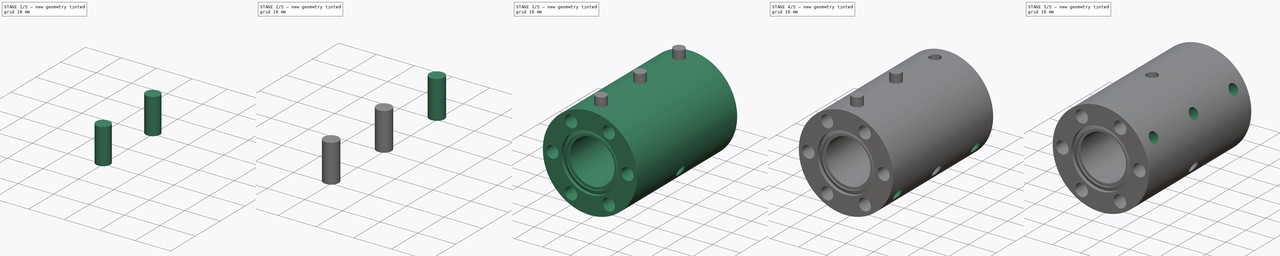
[diagram: build sequence overview — one tinted view per stage of 5, left to right]
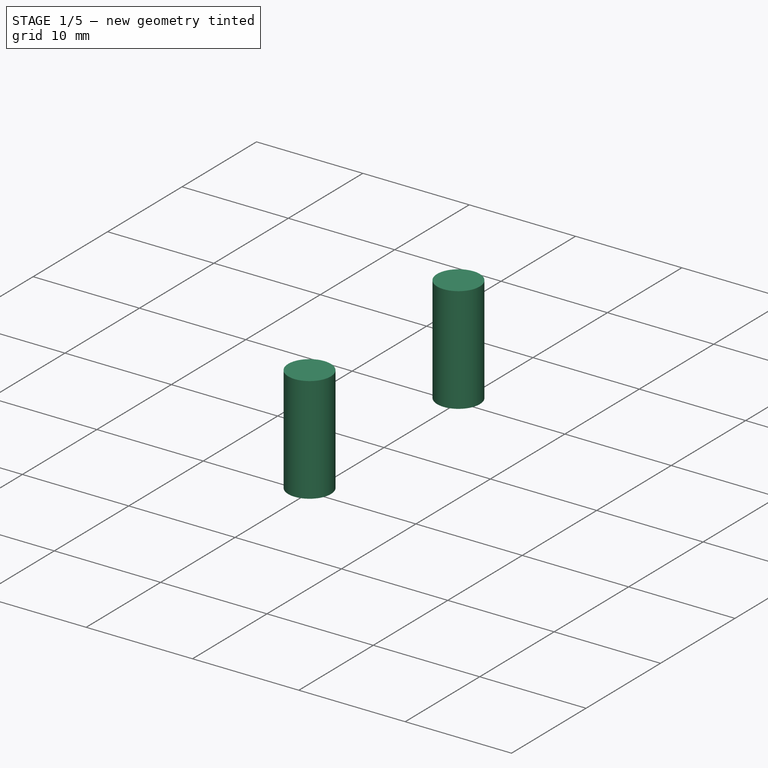
[diagram: stage 1 of 5 — iso view after this stage's code; geometry added in this stage tinted green]
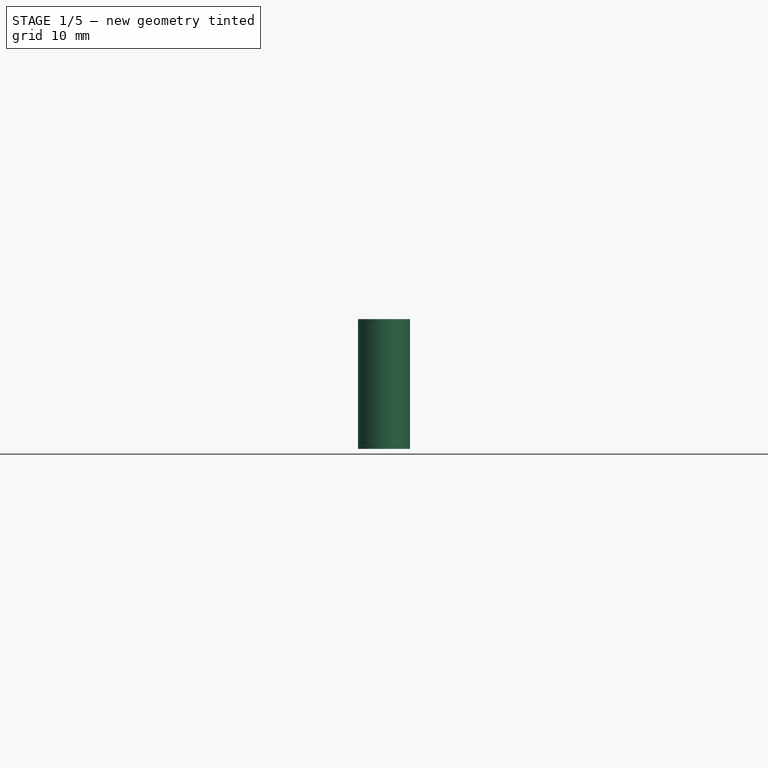
[diagram: stage 1 of 5 — front view after this stage's code; geometry added in this stage tinted green]
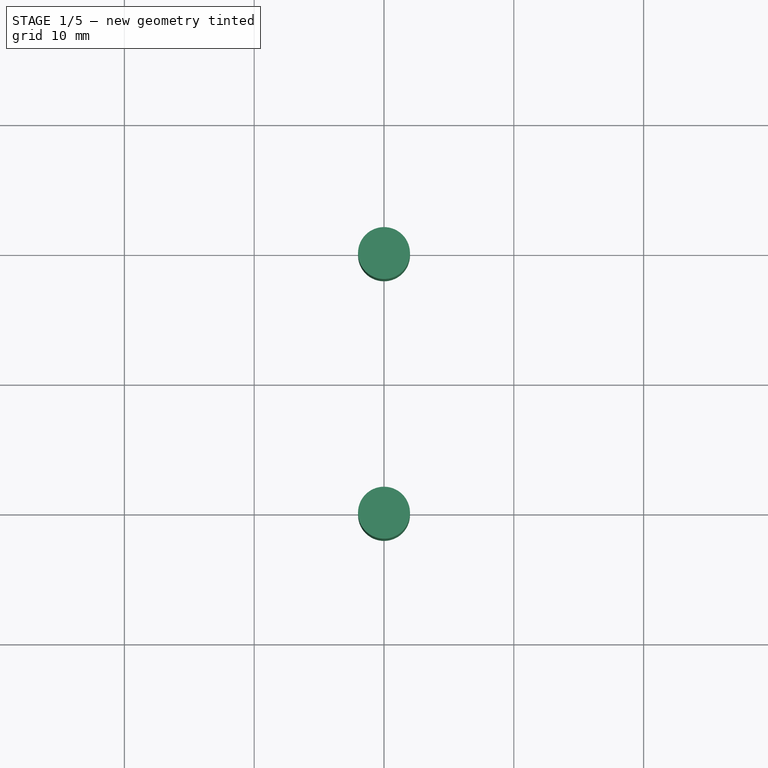
[diagram: stage 1 of 5 — top view after this stage's code; geometry added in this stage tinted green]
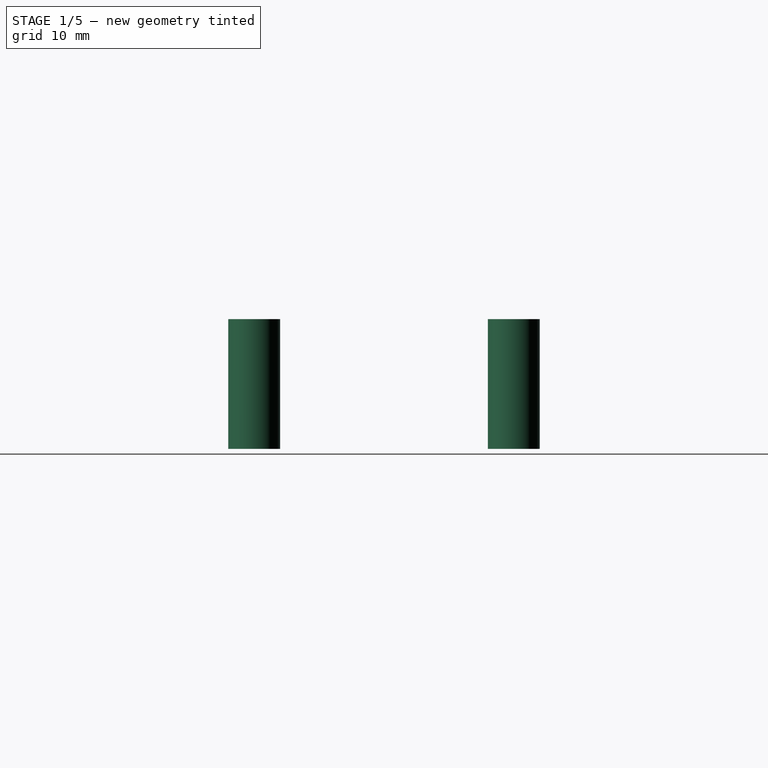
[diagram: stage 1 of 5 — right view after this stage's code; geometry added in this stage tinted green]
FCSTD DOCUMENT  (FreeCAD 0.14R2935 (Git))
Label: sv
License: CC-BY 3.0
LicenseURL: http://creativecommons.org/licenses/by/3.0/
objects: Part::Cylinder×12, Part::Cut×12, Sketcher::SketchObject×3, PartDesign::Pocket×2, PartDesign::Revolution×1
note: 33 computed .brp shape members not serialized (recipe doc carries the construction recipe); baked Part::Feature solids carry a one-line shape summary decoded from their .brp

FEATURE [Part::Cylinder] Cylinder007
  Angle = 360
  Height = 10
  Placement = pos=(0,-20,10) rot=(0,0,1;0rad)
  Radius = 2
FEATURE [Part::Cylinder] Cylinder008
  Angle = 360
  Height = 10
  Placement = pos=(0,-20,10) rot=(0,0,1;0rad)
  Radius = 2
FEATURE [Part::Cylinder] Cylinder009
  Angle = 360
  Height = 10
  Placement = pos=(0,0,10) rot=(0,0,-1;0.139626rad)
  Radius = 2
FEATURE [Part::Cylinder] Cylinder010
  Angle = 360
  Height = 10
  Placement = pos=(0,0,10) rot=(0,0,1;0rad)
  Radius = 2
FEATURE [Part::Cylinder] Cylinder011
  Angle = 360
  Height = 10
  Placement = pos=(0,0,10) rot=(0,0,1;0rad)
  Radius = 2
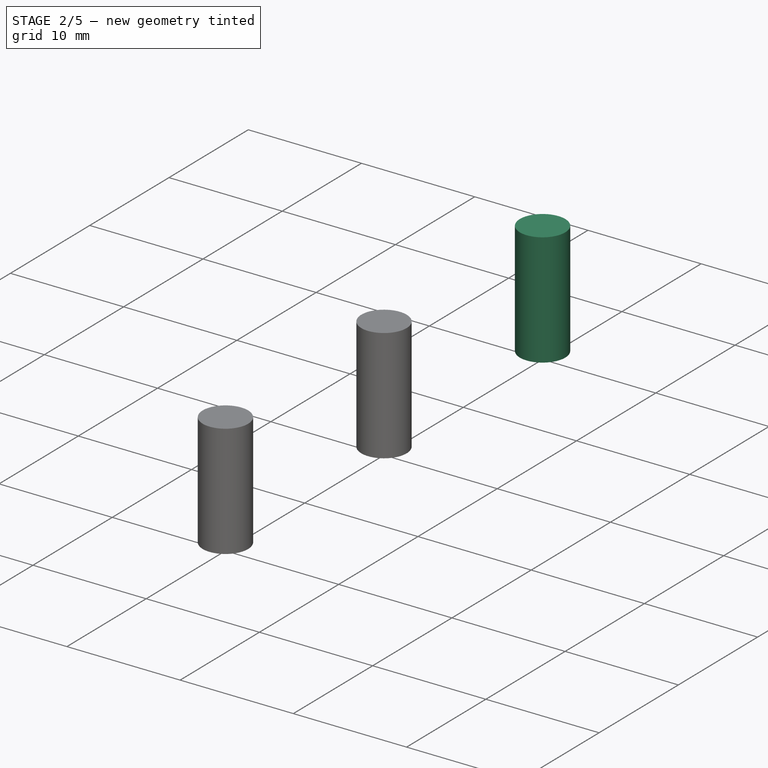
[diagram: stage 2 of 5 — iso view after this stage's code; geometry added in this stage tinted green]
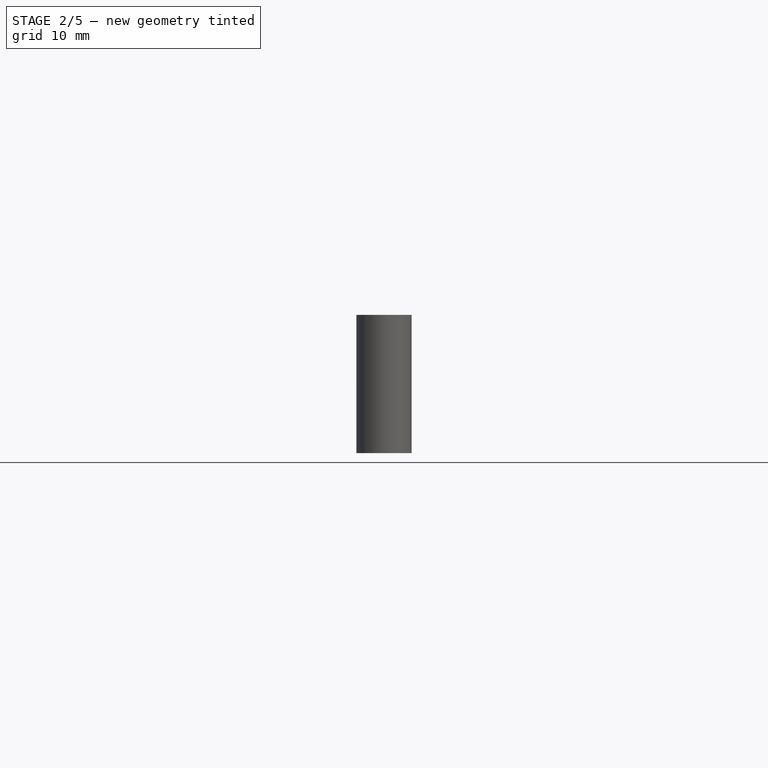
[diagram: stage 2 of 5 — front view after this stage's code; geometry added in this stage tinted green]
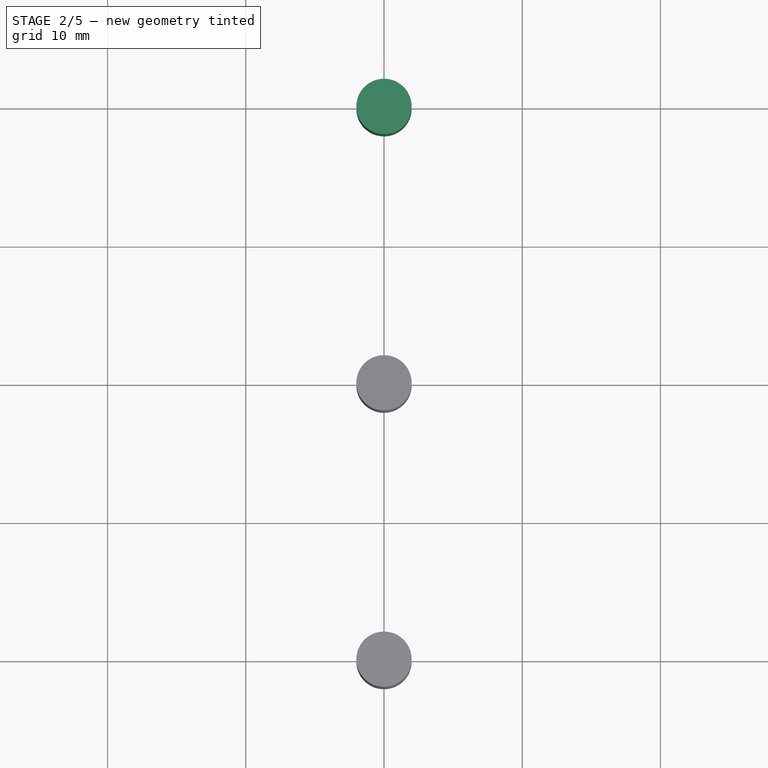
[diagram: stage 2 of 5 — top view after this stage's code; geometry added in this stage tinted green]
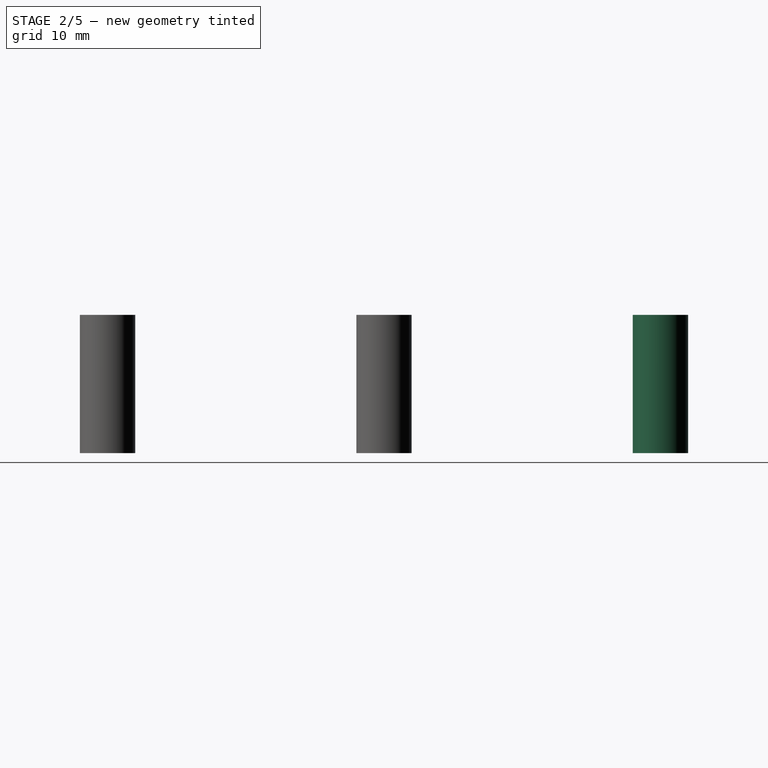
[diagram: stage 2 of 5 — right view after this stage's code; geometry added in this stage tinted green]
FEATURE [Part::Cylinder] Cylinder001
  Angle = 360
  Height = 10
  Placement = pos=(0,0,10) rot=(0,0,1;0.174533rad)
  Radius = 2
FEATURE [Part::Cylinder] Cylinder002
  Angle = 360
  Height = 10
  Placement = pos=(0,0,10) rot=(0,0,1;0rad)
  Radius = 2
FEATURE [Part::Cylinder] Cylinder003
  Angle = 360
  Height = 10
  Placement = pos=(0,20,10) rot=(0,0,1;0rad)
  Radius = 2
FEATURE [Part::Cylinder] Cylinder004
  Angle = 360
  Height = 10
  Placement = pos=(0,20,10) rot=(0,0,1;0rad)
  Radius = 2
FEATURE [Part::Cylinder] Cylinder005
  Angle = 360
  Height = 10
  Placement = pos=(0,20,10) rot=(0,0,1;0rad)
  Radius = 2
FEATURE [Part::Cylinder] Cylinder006
  Angle = 360
  Height = 10
  Placement = pos=(0,-20,10) rot=(0,0,1;0rad)
  Radius = 2
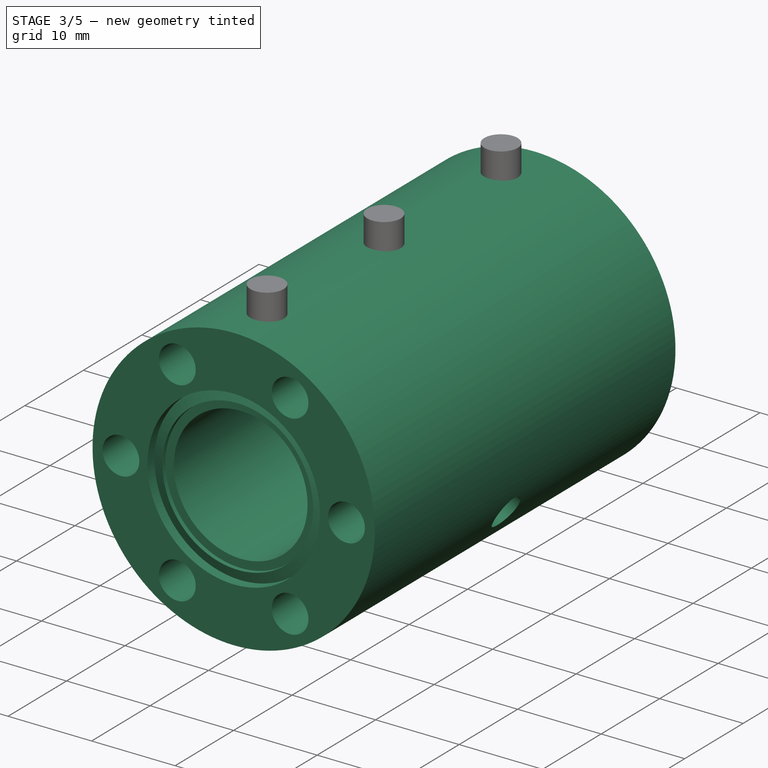
[diagram: stage 3 of 5 — iso view after this stage's code; geometry added in this stage tinted green]
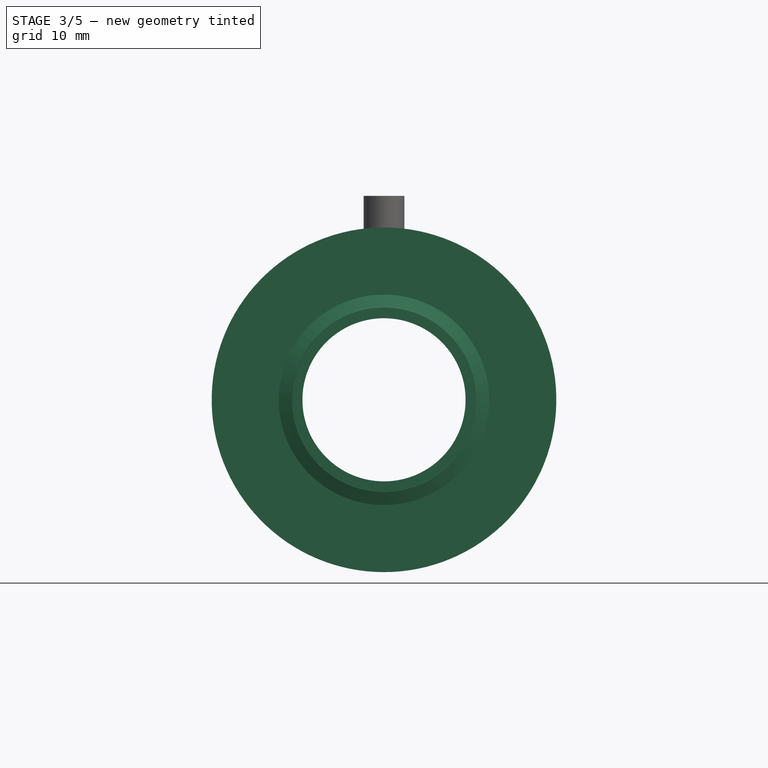
[diagram: stage 3 of 5 — front view after this stage's code; geometry added in this stage tinted green]
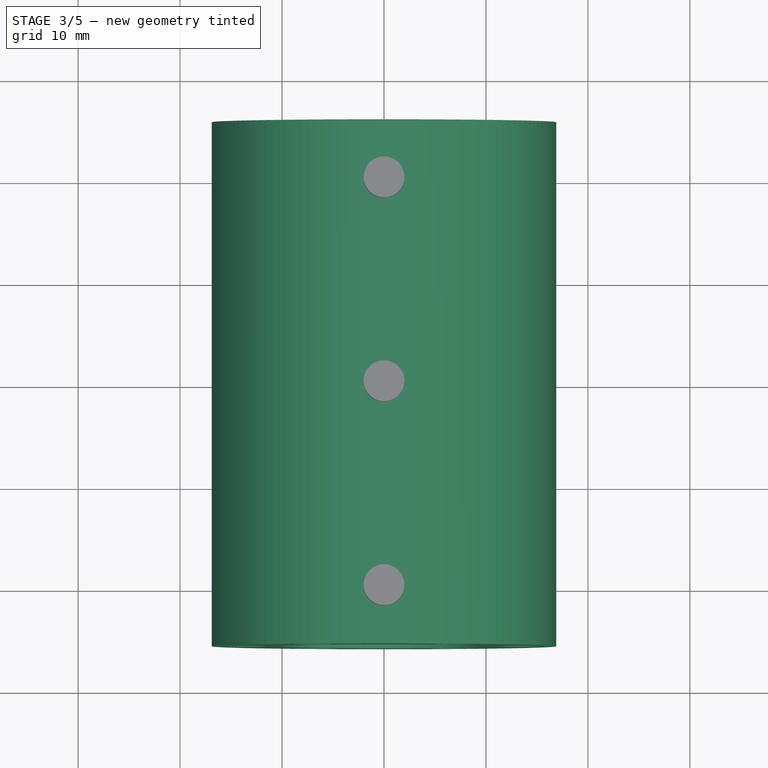
[diagram: stage 3 of 5 — top view after this stage's code; geometry added in this stage tinted green]
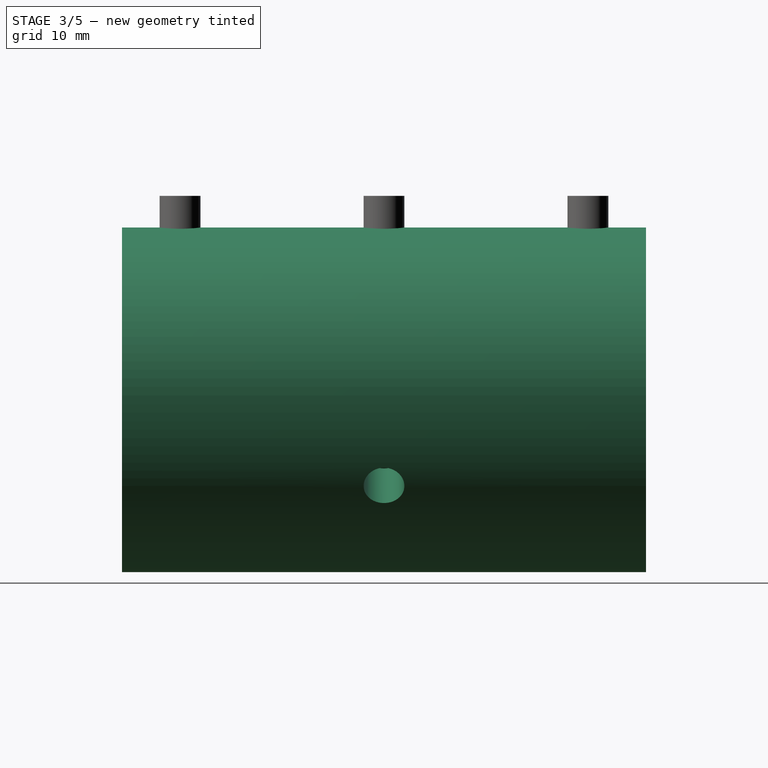
[diagram: stage 3 of 5 — right view after this stage's code; geometry added in this stage tinted green]
FEATURE [Sketcher::SketchObject] Sketch
  Placement = pos=(0,0,0) rot=(0.57735,0.57735,0.57735;2.0944rad)
  sketch-geometry (12):
    g0: LineSegment StartX=-24.5 StartY=8 StartZ=0 EndX=-24.5 EndY=9 EndZ=0
    g1: LineSegment StartX=-24.5 StartY=9 StartZ=0 EndX=-25 EndY=9.01746 EndZ=0
    g2: LineSegment StartX=-25 StartY=9.01746 StartZ=0 EndX=-24.5 EndY=10.3175 EndZ=0
    g3: LineSegment StartX=24.5 StartY=10.3175 StartZ=0 EndX=25 EndY=9.01746 EndZ=0
    g4: LineSegment StartX=25 StartY=9.01746 StartZ=0 EndX=24.5 EndY=9 EndZ=0
    g5: LineSegment StartX=24.5 StartY=9 StartZ=0 EndX=24.5 EndY=8 EndZ=0
    g6: LineSegment StartX=-24.5 StartY=8 StartZ=0 EndX=24.5 EndY=8 EndZ=0
    g7: LineSegment StartX=-24.5 StartY=10.3175 StartZ=0 EndX=-25.7 EndY=10.3175 EndZ=0
    g8: LineSegment StartX=-25.7 StartY=10.3175 StartZ=0 EndX=-25.7 EndY=16.9 EndZ=0
    g9: LineSegment StartX=-25.7 StartY=16.9 StartZ=0 EndX=25.7 EndY=16.9 EndZ=0
    g10: LineSegment StartX=25.7 StartY=16.9 StartZ=0 EndX=25.7 EndY=10.3175 EndZ=0
    g11: LineSegment StartX=25.7 StartY=10.3175 StartZ=0 EndX=24.5 EndY=10.3175 EndZ=0
  constraints (33):
    c: Coincident(g0,g1)
    c: Coincident(g1,g2)
    c: Coincident(g3,g4)
    c: Coincident(g4,g5)
    c: Symmetric(g0,g5,g-2)
    c: Symmetric(g0,g4,g-2)
    c: Symmetric(g1,g3,g-2)
    c: Parallel(g0,g-2)
    c: Angle(g1,g0) = 1.6057
    c: DistanceX(g2,g0) = 0
    c: DistanceY(g-1,g0) = 8
    c: DistanceX(g-1,g1) = -25
    c: Symmetric(g2,g3,g-2)
    c: DistanceX(g1,g0) = 0.5
    c: DistanceY(g1,g2) = 1.3
    c: DistanceY(g0,g0) = -1
    c: Coincident(g6,g0)
    c: Horizontal(g6)
    c: Coincident(g6,g5)
    c: Coincident(g2,g7)
    c: Horizontal(g7)
    c: Coincident(g7,g8)
    c: Vertical(g8)
    c: Coincident(g8,g9)
    c: Horizontal(g9)
    c: Coincident(g9,g10)
    c: Vertical(g10)
    c: Coincident(g10,g11)
    c: Coincident(g11,g3)
    c: DistanceY(g-1,g8) = 16.9
    c: DistanceX(g2,g7) = -1.2
    c: Equal(g7,g11)
    c: Equal(g8,g10)
FEATURE [PartDesign::Revolution] Revolution
  Angle = 360
  Axis = (0,1,0)
  Base = (0,0,0)
  Placement = pos=(0,0,0) rot=(0.57735,0.57735,0.57735;2.0944rad)
  ReferenceAxis = -> Sketch [H_Axis]
  Sketch = -> Sketch
FEATURE [Sketcher::SketchObject] Sketch001
  Placement = pos=(0,-25.7,0) rot=(-0.57735,-0.57735,0.57735;4.18879rad)
  Support = -> Revolution [Face5]
  sketch-geometry (12):
    g0: LineSegment [constr] StartX=0 StartY=13.5 StartZ=0 EndX=-11.6913 EndY=6.75 EndZ=0
    g1: LineSegment [constr] StartX=-11.6913 StartY=6.75 StartZ=0 EndX=-11.6913 EndY=-6.75 EndZ=0
    g2: LineSegment [constr] StartX=-11.6913 StartY=-6.75 StartZ=0 EndX=0 EndY=-13.5 EndZ=0
    g3: LineSegment [constr] StartX=0 StartY=-13.5 StartZ=0 EndX=11.6913 EndY=-6.75 EndZ=0
    g4: LineSegment [constr] StartX=11.6913 StartY=-6.75 StartZ=0 EndX=11.6913 EndY=6.75 EndZ=0
    g5: LineSegment [constr] StartX=11.6913 StartY=6.75 StartZ=0 EndX=0 EndY=13.5 EndZ=0
    g6: Circle CenterX=-11.6913 CenterY=6.75 CenterZ=0 NormalX=0 NormalY=0 NormalZ=1 Radius=2.2
    g7: Circle CenterX=-11.6913 CenterY=-6.75 CenterZ=0 NormalX=0 NormalY=0 NormalZ=1 Radius=2.2
    g8: Circle CenterX=0 CenterY=-13.5 CenterZ=0 NormalX=0 NormalY=0 NormalZ=1 Radius=2.2
    g9: Circle CenterX=11.6913 CenterY=-6.75 CenterZ=0 NormalX=0 NormalY=0 NormalZ=1 Radius=2.2
    g10: Circle CenterX=11.6913 CenterY=6.75 CenterZ=0 NormalX=0 NormalY=0 NormalZ=1 Radius=2.2
    g11: Circle CenterX=0 CenterY=13.5 CenterZ=0 NormalX=0 NormalY=0 NormalZ=1 Radius=2.2
  constraints (27):
    c: PointOnObject(g0,g-2)
    c: Coincident(g0,g1)
    c: Coincident(g1,g2)
    c: Coincident(g2,g3)
    c: Coincident(g3,g4)
    c: Vertical(g4)
    c: Coincident(g4,g5)
    c: Coincident(g5,g0)
    c: Symmetric(g0,g4,g-2)
    c: Symmetric(g1,g3,g-2)
    c: DistanceY(g-1,g0) = 13.5
    c: Symmetric(g2,g0,g-1)
    c: Angle(g5,g4) = 2.0944
    c: Angle(g4,g3) = 2.0944
    c: Distance(g0,g3) = 27
    c: Coincident(g7,g1)
    c: Coincident(g8,g2)
    c: Coincident(g9,g3)
    c: Coincident(g10,g4)
    c: Coincident(g11,g0)
    c: Radius(g6) = 2.2
    c: Coincident(g6,g0)
    c: Radius(g7) = 2.2
    c: Radius(g8) = 2.2
    c: Radius(g9) = 2.2
    c: Radius(g10) = 2.2
    c: Radius(g11) = 2.2
FEATURE [PartDesign::Pocket] Pocket
  Length = 5
  Placement = pos=(0,0,0) rot=(0.57735,0.57735,0.57735;2.0944rad)
  Sketch = -> Sketch001
  Type = 0
FEATURE [Sketcher::SketchObject] Sketch002
  Placement = pos=(0,25.7,0) rot=(0.57735,0.57735,0.57735;4.18879rad)
  Support = -> Pocket [Face18]
  sketch-geometry (12):
    g0: LineSegment [constr] StartX=0 StartY=13.5 StartZ=0 EndX=11.6913 EndY=6.75 EndZ=0
    g1: LineSegment [constr] StartX=11.6913 StartY=6.75 StartZ=0 EndX=11.6913 EndY=-6.75 EndZ=0
    g2: LineSegment [constr] StartX=11.6913 StartY=-6.75 StartZ=0 EndX=0 EndY=-13.5 EndZ=0
    g3: LineSegment [constr] StartX=0 StartY=-13.5 StartZ=0 EndX=-11.6913 EndY=-6.75 EndZ=0
    g4: LineSegment [constr] StartX=-11.6913 StartY=-6.75 StartZ=0 EndX=-11.6913 EndY=6.75 EndZ=0
    g5: LineSegment [constr] StartX=-11.6913 StartY=6.75 StartZ=0 EndX=0 EndY=13.5 EndZ=0
    g6: Circle CenterX=0 CenterY=13.5 CenterZ=0 NormalX=0 NormalY=0 NormalZ=1 Radius=2.2
    g7: Circle CenterX=11.6913 CenterY=6.75 CenterZ=0 NormalX=0 NormalY=0 NormalZ=1 Radius=2.2
    g8: Circle CenterX=11.6913 CenterY=-6.75 CenterZ=0 NormalX=0 NormalY=0 NormalZ=1 Radius=2.2
    g9: Circle CenterX=0 CenterY=-13.5 CenterZ=0 NormalX=0 NormalY=0 NormalZ=1 Radius=2.2
    g10: Circle CenterX=-11.6913 CenterY=-6.75 CenterZ=0 NormalX=0 NormalY=0 NormalZ=1 Radius=2.2
    g11: Circle CenterX=-11.6913 CenterY=6.75 CenterZ=0 NormalX=0 NormalY=0 NormalZ=1 Radius=2.2
  constraints (29):
    c: PointOnObject(g0,g-2)
    c: Coincident(g0,g1)
    c: Vertical(g1)
    c: Coincident(g1,g2)
    c: Coincident(g2,g3)
    c: Coincident(g3,g4)
    c: Vertical(g4)
    c: Coincident(g4,g5)
    c: Coincident(g5,g0)
    c: Symmetric(g0,g4,g-2)
    c: Symmetric(g3,g1,g-2)
    c: PointOnObject(g2,g-2)
    c: Angle(g0,g1) = 2.0944
    c: Angle(g3,g4) = 2.0944
    c: DistanceY(g-1,g0) = 13.5
    c: Symmetric(g2,g0,g-1)
    c: Distance(g4,g1) = 27
    c: Coincident(g6,g0)
    c: Coincident(g7,g0)
    c: Coincident(g8,g1)
    c: Coincident(g9,g2)
    c: Coincident(g10,g3)
    c: Coincident(g11,g4)
    c: Radius(g6) = 2.2
    c: Radius(g7) = 2.2
    c: Radius(g8) = 2.2
    c: Radius(g9) = 2.2
    c: Radius(g10) = 2.2
    c: Radius(g11) = 2.2
FEATURE [PartDesign::Pocket] Pocket001
  Length = 5
  Placement = pos=(0,0,0) rot=(0.57735,0.57735,0.57735;2.0944rad)
  Sketch = -> Sketch002
  Type = 0
FEATURE [Part::Cylinder] Cylinder
  Angle = 360
  Height = 10
  Placement = pos=(0,0,10) rot=(0,0,1;0rad)
  Radius = 2
FEATURE [Part::Cut] Cut
  Base = -> Pocket001
  Placement = pos=(0,0,0) rot=(0,1,0;2.0944rad)
  Tool = -> Cylinder
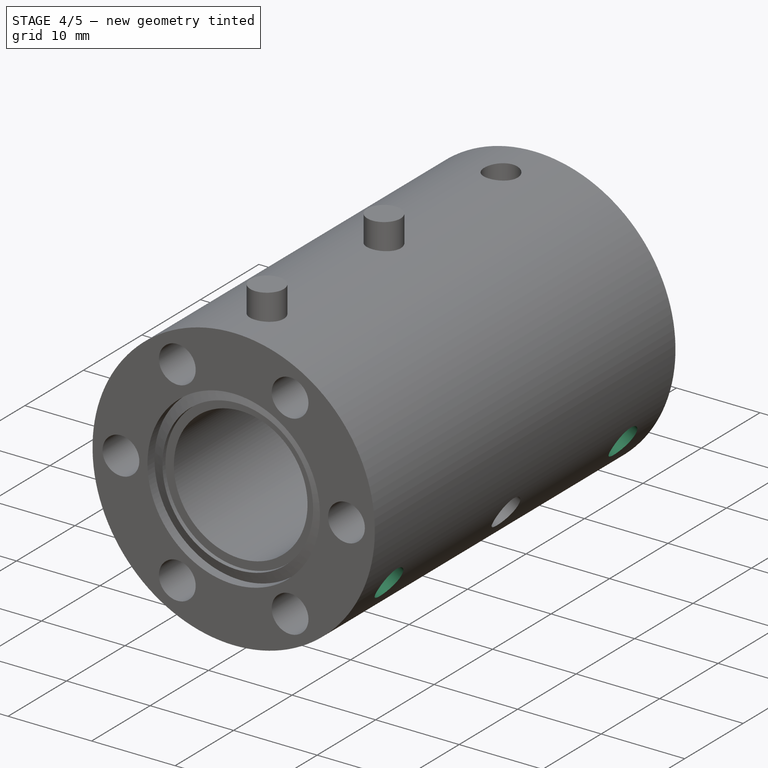
[diagram: stage 4 of 5 — iso view after this stage's code; geometry added in this stage tinted green]
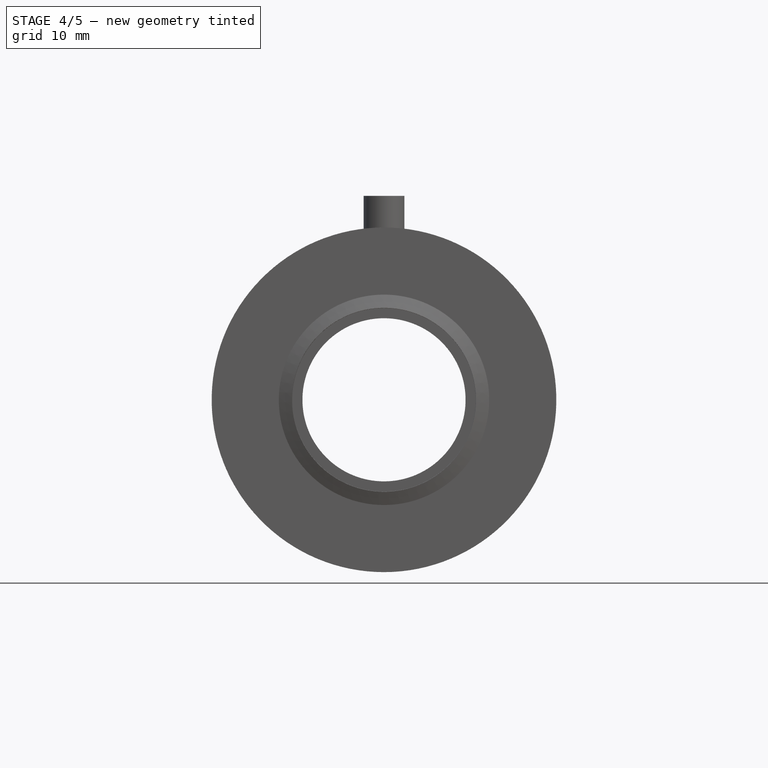
[diagram: stage 4 of 5 — front view after this stage's code; geometry added in this stage tinted green]
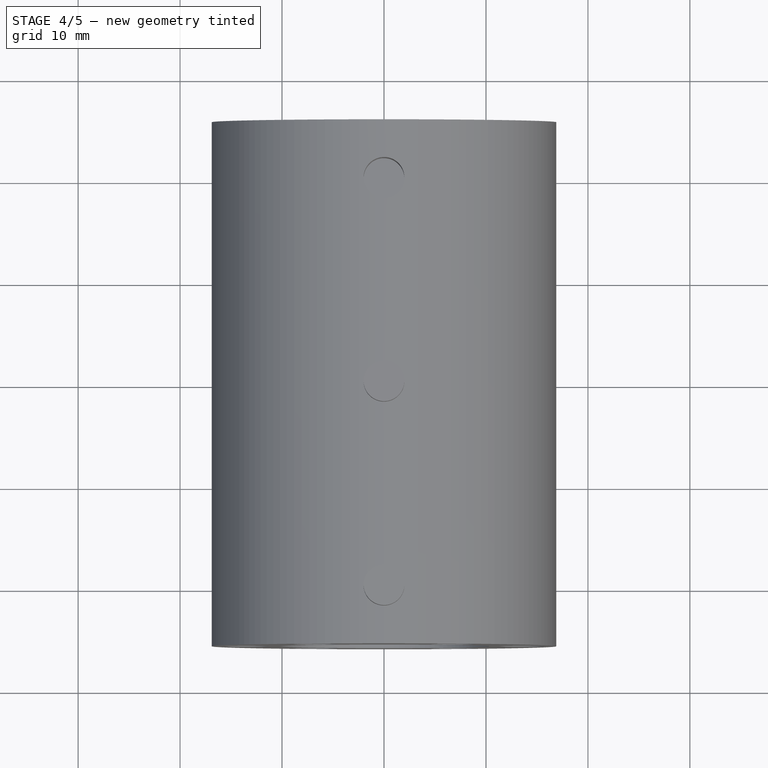
[diagram: stage 4 of 5 — top view after this stage's code; geometry added in this stage tinted green]
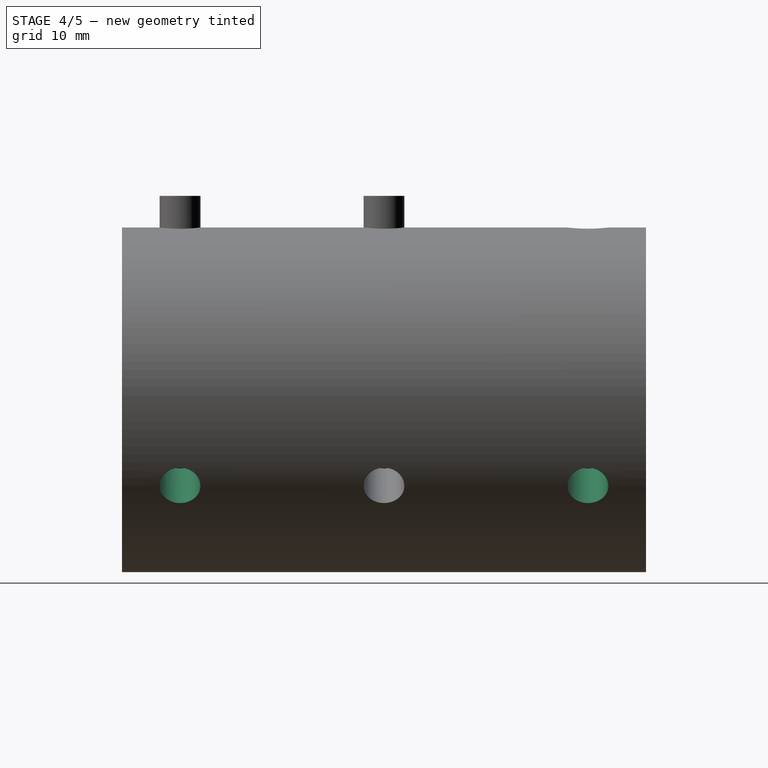
[diagram: stage 4 of 5 — right view after this stage's code; geometry added in this stage tinted green]
FEATURE [Part::Cut] Cut001
  Base = -> Cut
  Placement = pos=(0,0,0) rot=(0,1,0;2.0944rad)
  Tool = -> Cylinder001
FEATURE [Part::Cut] Cut002
  Base = -> Cut001
  Tool = -> Cylinder002
FEATURE [Part::Cut] Cut003
  Base = -> Cut002
  Placement = pos=(0,0,0) rot=(0,1,0;2.0944rad)
  Tool = -> Cylinder003
FEATURE [Part::Cut] Cut004
  Base = -> Cut003
  Placement = pos=(0,0,0) rot=(0,1,0;2.0944rad)
  Tool = -> Cylinder004
FEATURE [Part::Cut] Cut005
  Base = -> Cut004
  Tool = -> Cylinder005
FEATURE [Part::Cut] Cut006
  Base = -> Cut005
  Placement = pos=(0,0,0) rot=(0,1,0;2.0944rad)
  Tool = -> Cylinder006
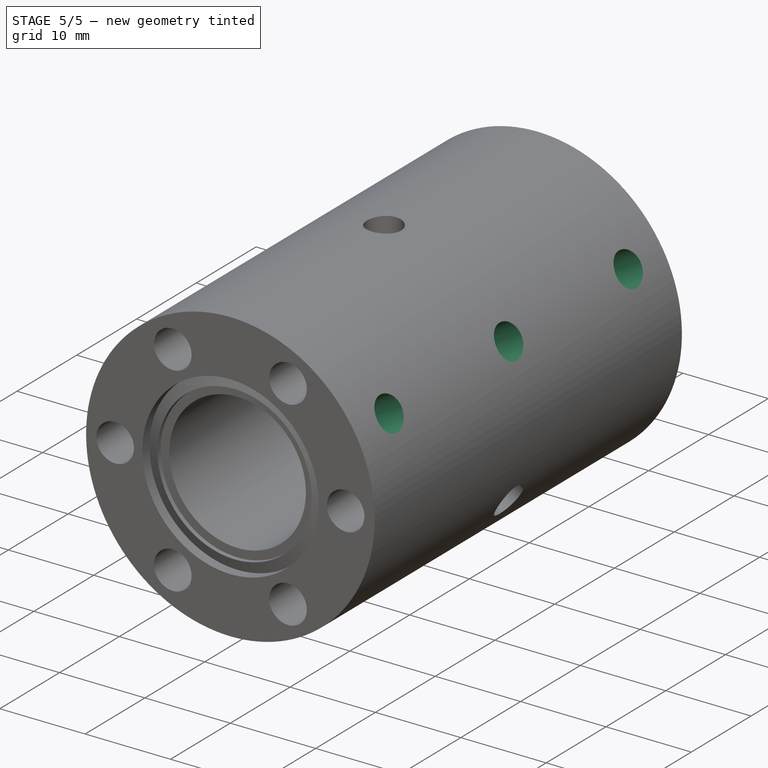
[diagram: stage 5 of 5 — iso view after this stage's code; geometry added in this stage tinted green]
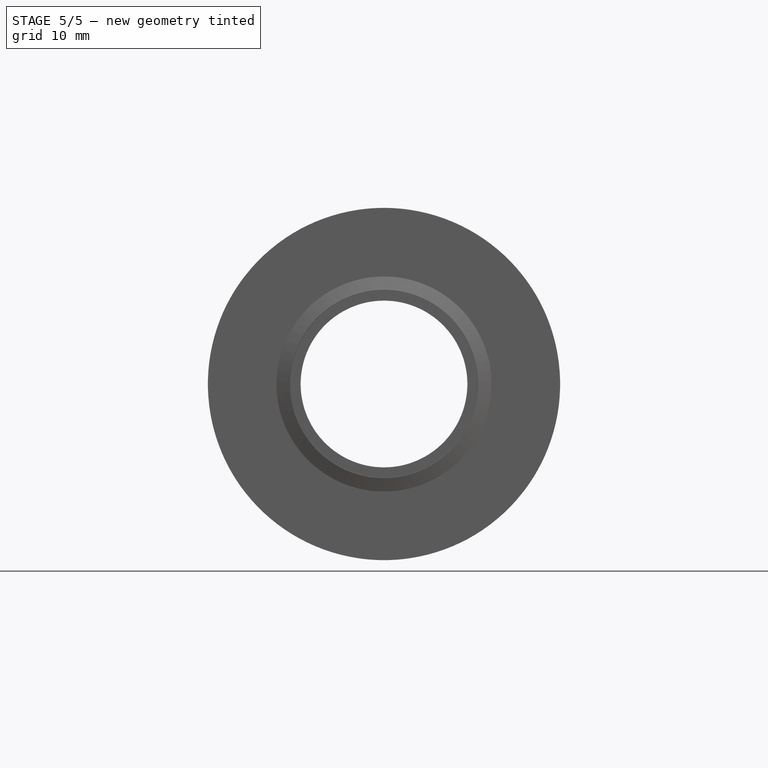
[diagram: stage 5 of 5 — front view after this stage's code; geometry added in this stage tinted green]
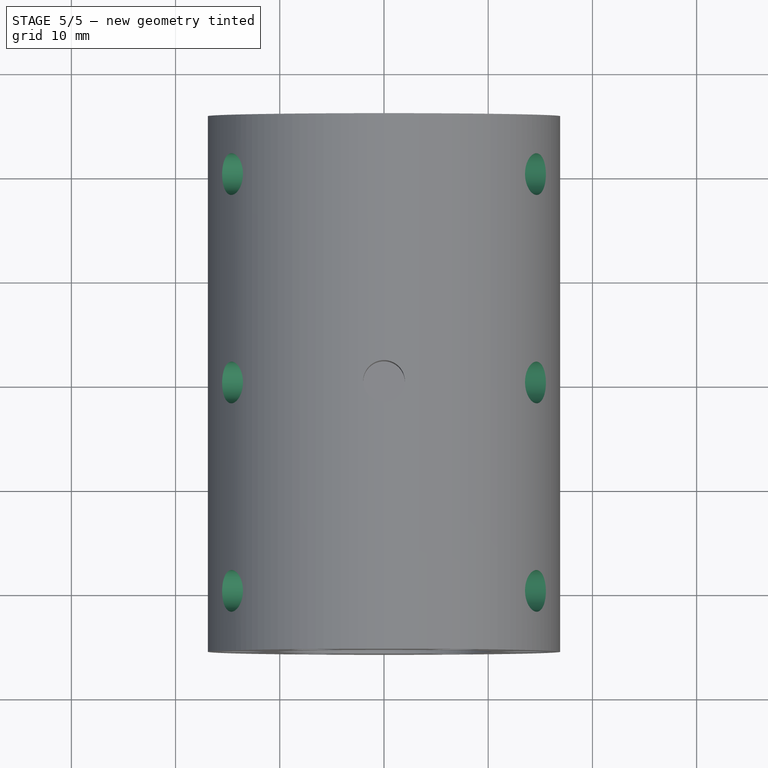
[diagram: stage 5 of 5 — top view after this stage's code; geometry added in this stage tinted green]
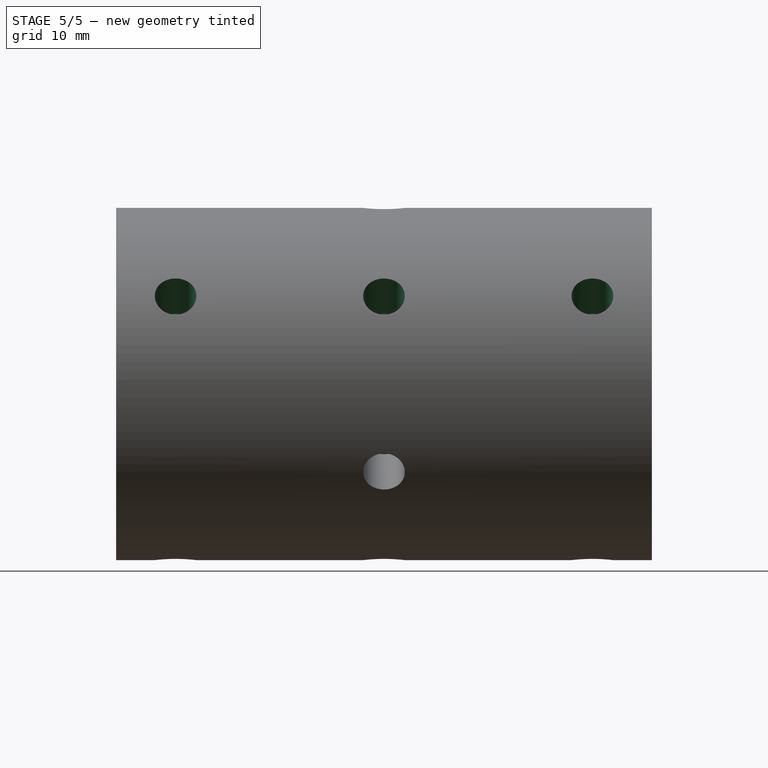
[diagram: stage 5 of 5 — right view after this stage's code; geometry added in this stage tinted green]
FEATURE [Part::Cut] Cut007
  Base = -> Cut006
  Placement = pos=(0,0,0) rot=(0,1,0;2.0944rad)
  Tool = -> Cylinder007
FEATURE [Part::Cut] Cut008
  Base = -> Cut007
  Placement = pos=(0,0,0) rot=(0,1,0;1.0472rad)
  Tool = -> Cylinder008
FEATURE [Part::Cut] Cut009
  Base = -> Cut008
  Placement = pos=(0,0,0) rot=(0,1,0;2.0944rad)
  Tool = -> Cylinder009
FEATURE [Part::Cut] Cut010
  Base = -> Cut009
  Placement = pos=(0,0,0) rot=(0,1,0;2.0944rad)
  Tool = -> Cylinder010
FEATURE [Part::Cut] Cut011
  Base = -> Cut010
  Tool = -> Cylinder011
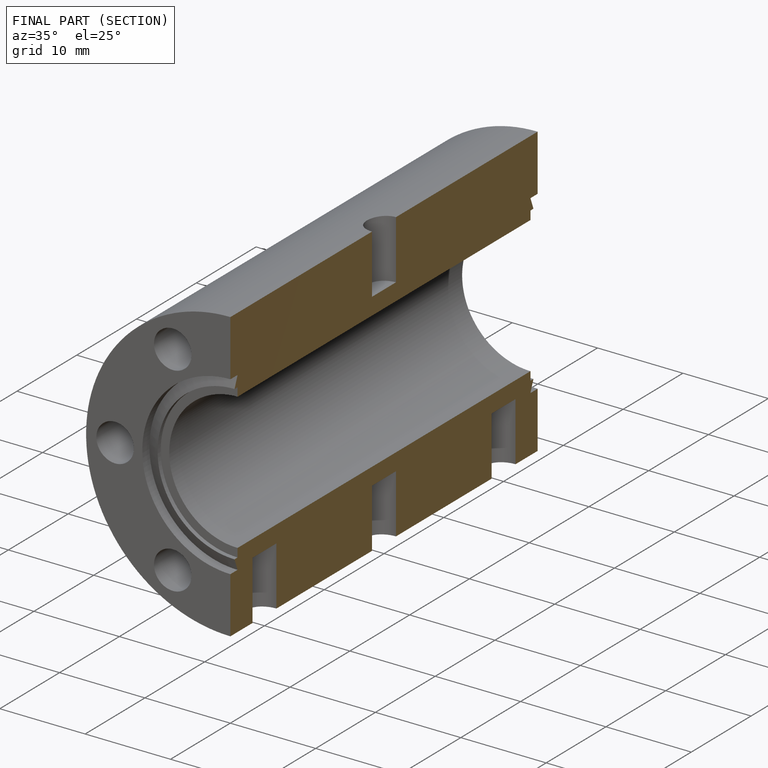
[diagram: finished part — half-section view (interior)]
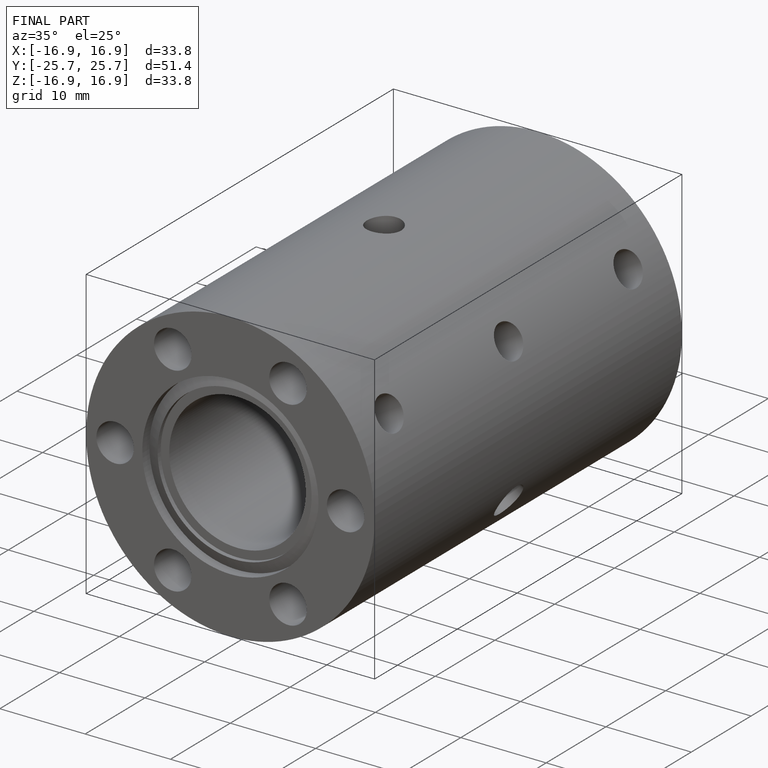
[diagram: finished part — iso view with bounding-box wireframe]
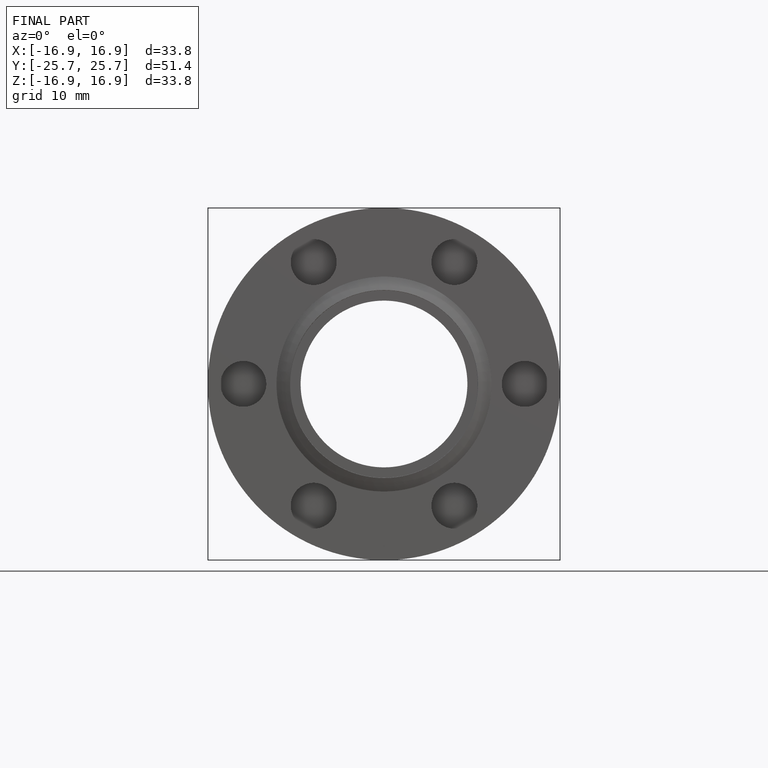
[diagram: finished part — front view with bounding-box wireframe]
